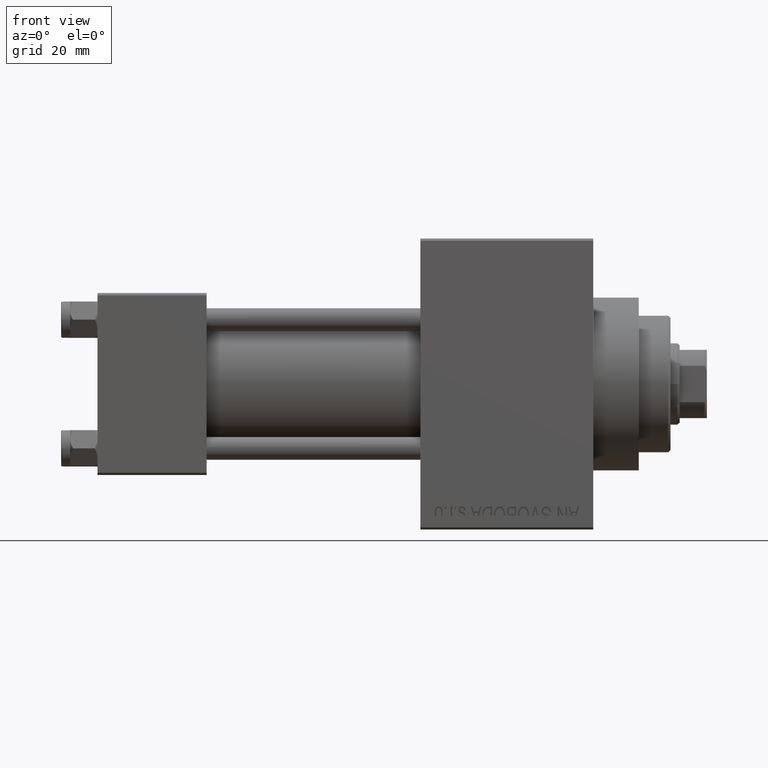
[diagram: clean part render]
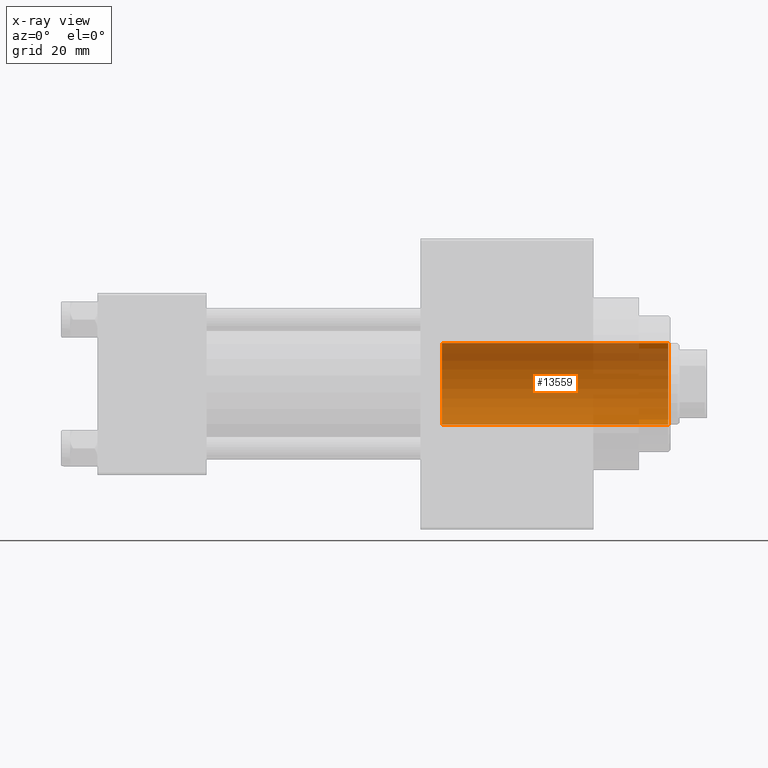
[diagram: x-ray — body ghosted, one internal face saturated and labeled with its STEP entity id]
A machine part, front view, then the same camera in x-ray: the body is ghosted and one INTERNAL B-rep face — a face not visible from any outside direction — is saturated and labeled: STEP entity #13559.
In plain terms, the highlighted cylindrical surface (partial cylindrical patch) has radius 9 mm, axis along (1, -0, -0).
Its self-contained STEP definition (entity closure, byte-faithful):
#290 = CYLINDRICAL_SURFACE ( 'NONE', #7926, 9.000000000000000000 ) ;
#2787 = CARTESIAN_POINT ( 'NONE',  ( -9.000000000000000000, 1.102182119232617714E-15, 49.75999999999999801 ) ) ;
#2906 = CARTESIAN_POINT ( 'NONE',  ( 0.000000000000000000, 0.000000000000000000, -25.45584412271570329 ) ) ;
#4280 = DIRECTION ( 'NONE',  ( 1.000000000000000000, 0.000000000000000000, 0.000000000000000000 ) ) ;
#7483 = EDGE_LOOP ( 'NONE', ( #26134, #21573, #29948, #37974 ) ) ;
#7508 = DIRECTION ( 'NONE',  ( -0.000000000000000000, -0.000000000000000000, 1.000000000000000000 ) ) ;
#7764 = EDGE_CURVE ( 'NONE', #14116, #27561, #19958, .T. ) ;
#7926 = AXIS2_PLACEMENT_3D ( 'NONE', #2906, #39557, #17413 ) ;
#11745 = DIRECTION ( 'NONE',  ( -0.000000000000000000, -0.000000000000000000, 1.000000000000000000 ) ) ;
#12006 = LINE ( 'NONE', #22478, #23108 ) ;
#12446 = CARTESIAN_POINT ( 'NONE',  ( -9.000000000000000000, 1.102182119232617714E-15, -25.45584412271570329 ) ) ;
#13559 = ADVANCED_FACE ( 'NONE', ( #35513 ), #290, .F. ) ;
#14116 = VERTEX_POINT ( 'NONE', #46333 ) ;
#14804 = EDGE_CURVE ( 'NONE', #25379, #32157, #44424, .T. ) ;
#15545 = LINE ( 'NONE', #12446, #30315 ) ;
#16068 = CARTESIAN_POINT ( 'NONE',  ( -9.000000000000000000, 1.102182119232617714E-15, 0.000000000000000000 ) ) ;
#17413 = DIRECTION ( 'NONE',  ( 1.000000000000000000, 0.000000000000000000, 0.000000000000000000 ) ) ;
#18338 = EDGE_CURVE ( 'NONE', #27561, #32157, #15545, .T. ) ;
#18424 = CARTESIAN_POINT ( 'NONE',  ( 0.000000000000000000, 0.000000000000000000, 0.000000000000000000 ) ) ;
#19958 = CIRCLE ( 'NONE', #26048, 9.000000000000000000 ) ;
#21279 = CARTESIAN_POINT ( 'NONE',  ( 9.000000000000000000, 0.000000000000000000, 49.75999999999999801 ) ) ;
#21573 = ORIENTED_EDGE ( 'NONE', *, *, #18338, .T. ) ;
#22478 = CARTESIAN_POINT ( 'NONE',  ( 9.000000000000000000, 0.000000000000000000, -25.45584412271570329 ) ) ;
#23108 = VECTOR ( 'NONE', #7508, 1000.000000000000000 ) ;
#23908 = AXIS2_PLACEMENT_3D ( 'NONE', #36879, #29495, #4280 ) ;
#25379 = VERTEX_POINT ( 'NONE', #21279 ) ;
#26048 = AXIS2_PLACEMENT_3D ( 'NONE', #18424, #44119, #44593 ) ;
#26134 = ORIENTED_EDGE ( 'NONE', *, *, #7764, .T. ) ;
#27561 = VERTEX_POINT ( 'NONE', #16068 ) ;
#29495 = DIRECTION ( 'NONE',  ( -0.000000000000000000, -0.000000000000000000, -1.000000000000000000 ) ) ;
#29948 = ORIENTED_EDGE ( 'NONE', *, *, #14804, .F. ) ;
#30315 = VECTOR ( 'NONE', #11745, 1000.000000000000000 ) ;
#32157 = VERTEX_POINT ( 'NONE', #2787 ) ;
#35513 = FACE_OUTER_BOUND ( 'NONE', #7483, .T. ) ;
#36879 = CARTESIAN_POINT ( 'NONE',  ( 0.000000000000000000, 0.000000000000000000, 49.75999999999999801 ) ) ;
#37974 = ORIENTED_EDGE ( 'NONE', *, *, #38196, .F. ) ;
#38196 = EDGE_CURVE ( 'NONE', #14116, #25379, #12006, .T. ) ;
#39557 = DIRECTION ( 'NONE',  ( -0.000000000000000000, -0.000000000000000000, 1.000000000000000000 ) ) ;
#44119 = DIRECTION ( 'NONE',  ( -0.000000000000000000, -0.000000000000000000, -1.000000000000000000 ) ) ;
#44424 = CIRCLE ( 'NONE', #23908, 9.000000000000000000 ) ;
#44593 = DIRECTION ( 'NONE',  ( 1.000000000000000000, 0.000000000000000000, 0.000000000000000000 ) ) ;
#46333 = CARTESIAN_POINT ( 'NONE',  ( 9.000000000000000000, 0.000000000000000000, 0.000000000000000000 ) ) ;